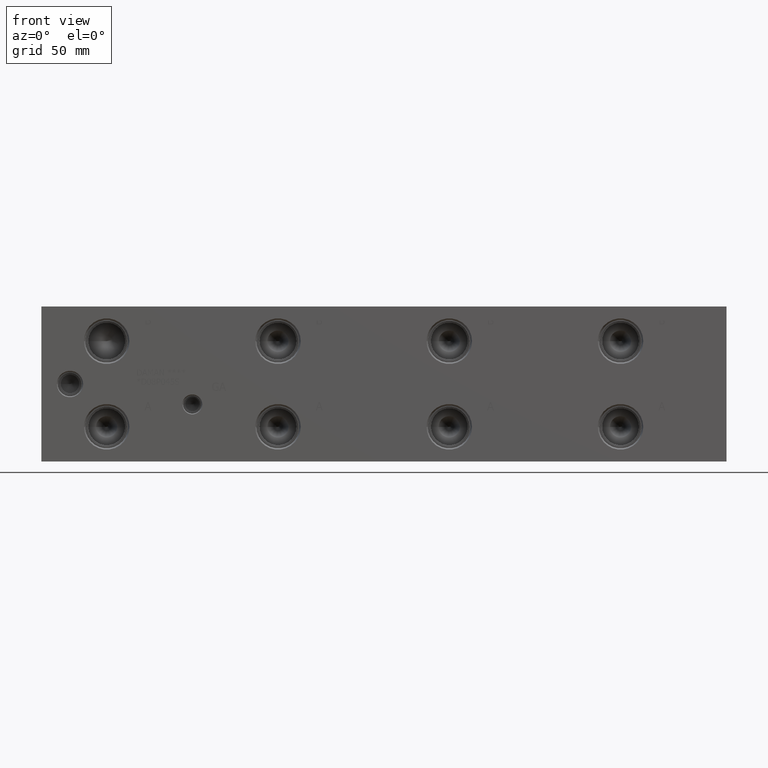
[diagram: clean part render]
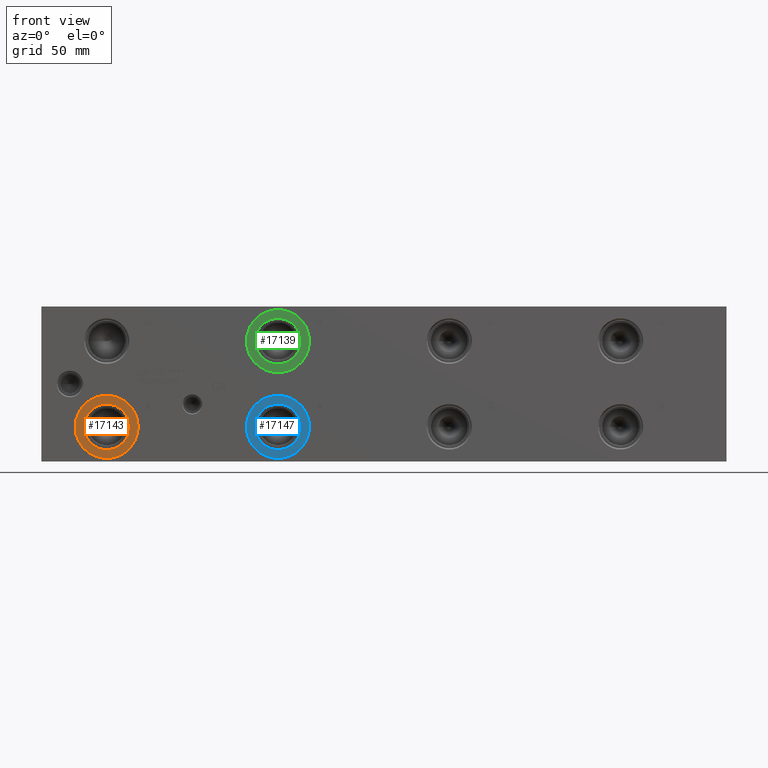
[diagram: same view with three faces highlighted in distinct colors, each labeled with its STEP entity id]
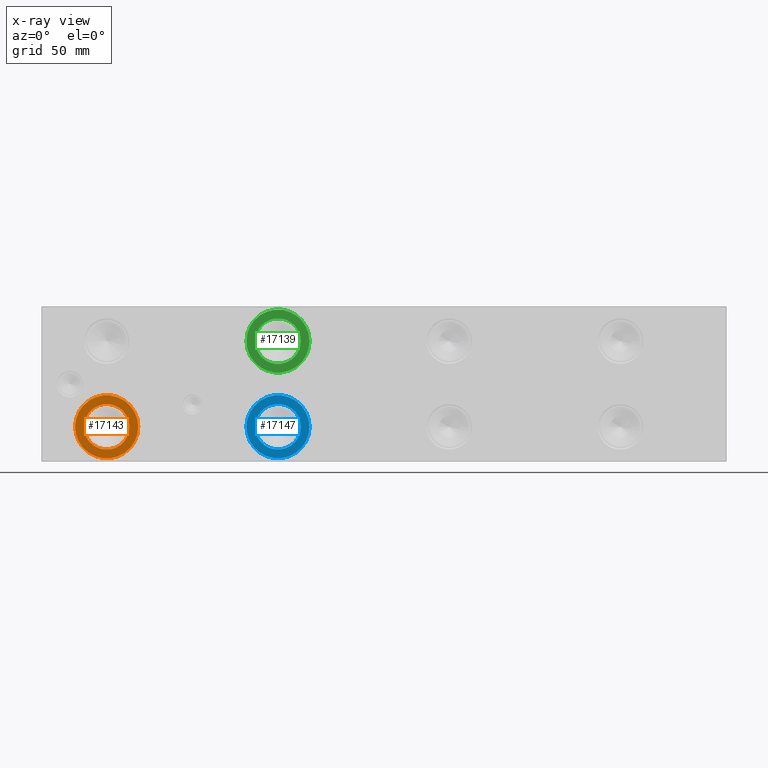
[diagram: x-ray of the same camera — body ghosted, the three highlighted faces saturated]
A machine part, front view with three faces highlighted in distinct colors.
The next image is the same camera in x-ray (body ghosted, the three faces saturated) — at least one of them is partly hidden behind the body in this view.
Their STEP definitions:

[orange] entity #17143 — the highlighted planar face has unit normal (0, -1, 0).
#689=CIRCLE('',#18096,24.5618);
#690=CIRCLE('',#18097,24.5618);
#691=CIRCLE('',#18098,17.7546);
#1530=FACE_BOUND('',#3308,.T.);
#2300=FACE_OUTER_BOUND('',#3307,.T.);
#3307=EDGE_LOOP('',(#14245,#14246));
#3308=EDGE_LOOP('',(#14247));
#7794=VERTEX_POINT('',#28943);
#7795=VERTEX_POINT('',#28944);
#7796=VERTEX_POINT('',#28947);
#10073=EDGE_CURVE('',#7794,#7795,#689,.T.);
#10074=EDGE_CURVE('',#7795,#7794,#690,.T.);
#10075=EDGE_CURVE('',#7796,#7796,#691,.T.);
#14245=ORIENTED_EDGE('',*,*,#10073,.T.);
#14246=ORIENTED_EDGE('',*,*,#10074,.T.);
#14247=ORIENTED_EDGE('',*,*,#10075,.F.);
#15878=PLANE('',#18095);
#17143=ADVANCED_FACE('',(#2300,#1530),#15878,.T.);
#18095=AXIS2_PLACEMENT_3D('',#28942,#21383,#21384);
#18096=AXIS2_PLACEMENT_3D('',#28945,#21385,#21386);
#18097=AXIS2_PLACEMENT_3D('',#28946,#21387,#21388);
#18098=AXIS2_PLACEMENT_3D('',#28948,#21389,#21390);
#21383=DIRECTION('center_axis',(0.,-1.,0.));
#21384=DIRECTION('ref_axis',(1.,0.,0.));
#21385=DIRECTION('center_axis',(0.,-1.,0.));
#21386=DIRECTION('ref_axis',(1.,0.,0.));
#21387=DIRECTION('center_axis',(0.,-1.,0.));
#21388=DIRECTION('ref_axis',(1.,0.,0.));
#21389=DIRECTION('center_axis',(0.,-1.,0.));
#21390=DIRECTION('ref_axis',(1.,0.,0.));
#28942=CARTESIAN_POINT('Origin',(50.8,0.7874,26.9748));
#28943=CARTESIAN_POINT('',(75.3618,0.7874,26.9748));
#28944=CARTESIAN_POINT('',(26.2382,0.7874,26.9748));
#28945=CARTESIAN_POINT('Origin',(50.8,0.7874,26.9748));
#28946=CARTESIAN_POINT('Origin',(50.8,0.7874,26.9748));
#28947=CARTESIAN_POINT('',(33.0454,0.7874,26.9748));
#28948=CARTESIAN_POINT('Origin',(50.8,0.7874,26.9748));

[blue] entity #17147 — the highlighted planar face has unit normal (0, -1, 0).
#692=CIRCLE('',#18103,24.5618);
#693=CIRCLE('',#18104,24.5618);
#694=CIRCLE('',#18105,17.7546);
#1531=FACE_BOUND('',#3313,.T.);
#2304=FACE_OUTER_BOUND('',#3312,.T.);
#3312=EDGE_LOOP('',(#14262,#14263));
#3313=EDGE_LOOP('',(#14264));
#7798=VERTEX_POINT('',#28957);
#7799=VERTEX_POINT('',#28958);
#7800=VERTEX_POINT('',#28961);
#10079=EDGE_CURVE('',#7798,#7799,#692,.T.);
#10080=EDGE_CURVE('',#7799,#7798,#693,.T.);
#10081=EDGE_CURVE('',#7800,#7800,#694,.T.);
#14262=ORIENTED_EDGE('',*,*,#10079,.T.);
#14263=ORIENTED_EDGE('',*,*,#10080,.T.);
#14264=ORIENTED_EDGE('',*,*,#10081,.F.);
#15879=PLANE('',#18102);
#17147=ADVANCED_FACE('',(#2304,#1531),#15879,.T.);
#18102=AXIS2_PLACEMENT_3D('',#28956,#21400,#21401);
#18103=AXIS2_PLACEMENT_3D('',#28959,#21402,#21403);
#18104=AXIS2_PLACEMENT_3D('',#28960,#21404,#21405);
#18105=AXIS2_PLACEMENT_3D('',#28962,#21406,#21407);
#21400=DIRECTION('center_axis',(0.,-1.,0.));
#21401=DIRECTION('ref_axis',(1.,0.,0.));
#21402=DIRECTION('center_axis',(0.,-1.,0.));
#21403=DIRECTION('ref_axis',(1.,0.,0.));
#21404=DIRECTION('center_axis',(0.,-1.,0.));
#21405=DIRECTION('ref_axis',(1.,0.,0.));
#21406=DIRECTION('center_axis',(0.,-1.,0.));
#21407=DIRECTION('ref_axis',(1.,0.,0.));
#28956=CARTESIAN_POINT('Origin',(184.15,0.7874,26.9748));
#28957=CARTESIAN_POINT('',(208.7118,0.7874,26.9748));
#28958=CARTESIAN_POINT('',(159.5882,0.7874,26.9748));
#28959=CARTESIAN_POINT('Origin',(184.15,0.7874,26.9748));
#28960=CARTESIAN_POINT('Origin',(184.15,0.7874,26.9748));
#28961=CARTESIAN_POINT('',(166.3954,0.7874,26.9748));
#28962=CARTESIAN_POINT('Origin',(184.15,0.7874,26.9748));

[green] entity #17139 — the highlighted planar face has unit normal (0, -1, 0).
#686=CIRCLE('',#18089,24.5618);
#687=CIRCLE('',#18090,24.5618);
#688=CIRCLE('',#18091,17.7546);
#1529=FACE_BOUND('',#3303,.T.);
#2296=FACE_OUTER_BOUND('',#3302,.T.);
#3302=EDGE_LOOP('',(#14228,#14229));
#3303=EDGE_LOOP('',(#14230));
#7790=VERTEX_POINT('',#28929);
#7791=VERTEX_POINT('',#28930);
#7792=VERTEX_POINT('',#28933);
#10067=EDGE_CURVE('',#7790,#7791,#686,.T.);
#10068=EDGE_CURVE('',#7791,#7790,#687,.T.);
#10069=EDGE_CURVE('',#7792,#7792,#688,.T.);
#14228=ORIENTED_EDGE('',*,*,#10067,.T.);
#14229=ORIENTED_EDGE('',*,*,#10068,.T.);
#14230=ORIENTED_EDGE('',*,*,#10069,.F.);
#15877=PLANE('',#18088);
#17139=ADVANCED_FACE('',(#2296,#1529),#15877,.T.);
#18088=AXIS2_PLACEMENT_3D('',#28928,#21366,#21367);
#18089=AXIS2_PLACEMENT_3D('',#28931,#21368,#21369);
#18090=AXIS2_PLACEMENT_3D('',#28932,#21370,#21371);
#18091=AXIS2_PLACEMENT_3D('',#28934,#21372,#21373);
#21366=DIRECTION('center_axis',(0.,-1.,0.));
#21367=DIRECTION('ref_axis',(1.,0.,0.));
#21368=DIRECTION('center_axis',(0.,-1.,0.));
#21369=DIRECTION('ref_axis',(1.,0.,0.));
#21370=DIRECTION('center_axis',(0.,-1.,0.));
#21371=DIRECTION('ref_axis',(1.,0.,0.));
#21372=DIRECTION('center_axis',(0.,-1.,0.));
#21373=DIRECTION('ref_axis',(1.,0.,0.));
#28928=CARTESIAN_POINT('Origin',(184.15,0.7874,93.6752));
#28929=CARTESIAN_POINT('',(208.7118,0.7874,93.6752));
#28930=CARTESIAN_POINT('',(159.5882,0.7874,93.6752));
#28931=CARTESIAN_POINT('Origin',(184.15,0.7874,93.6752));
#28932=CARTESIAN_POINT('Origin',(184.15,0.7874,93.6752));
#28933=CARTESIAN_POINT('',(166.3954,0.7874,93.6752));
#28934=CARTESIAN_POINT('Origin',(184.15,0.7874,93.6752));